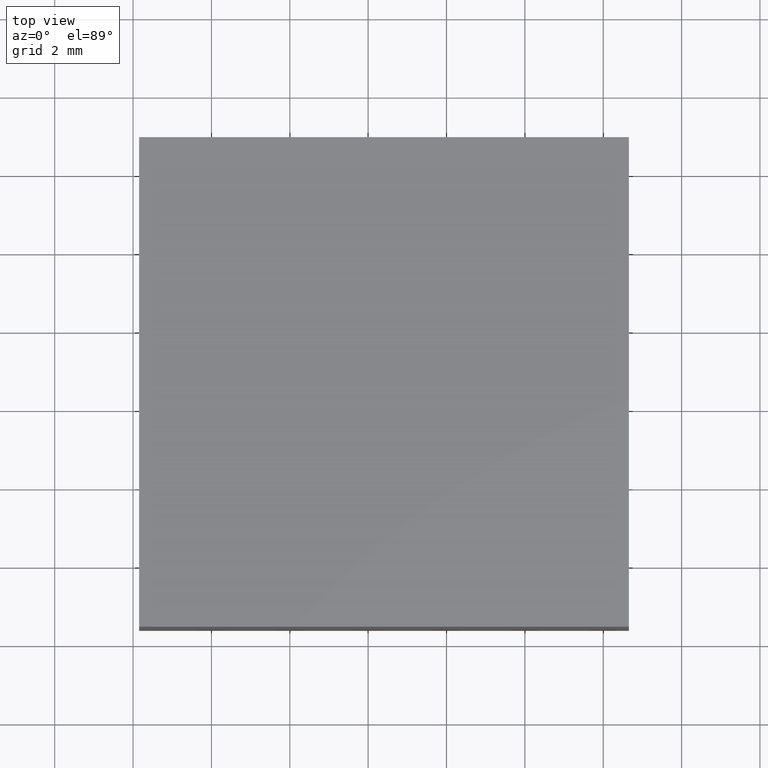
[diagram: clean part render]
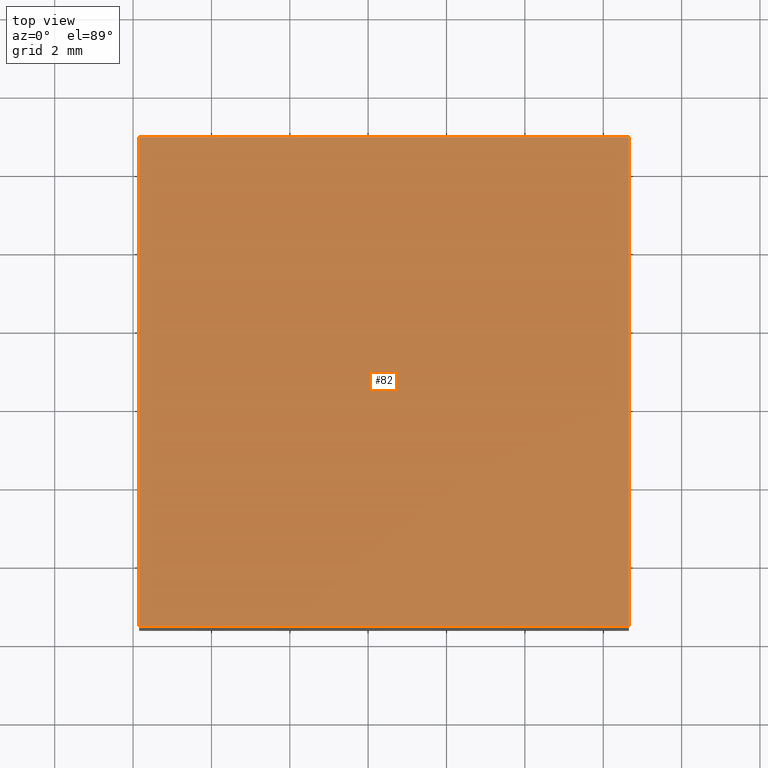
[diagram: same view with one face highlighted and labeled with its STEP entity id]
A machine part, top view. The second image highlights one B-rep face of the part: STEP entity #82.
In plain terms, the highlighted planar face has unit normal (0, 0, -1).
Its self-contained STEP definition (entity closure, byte-faithful):
#7 = VECTOR ( 'NONE', #153, 1000.000000000000000 ) ;
#11 = CARTESIAN_POINT ( 'NONE',  ( 104.1543858644214700, 32.39658967450770900, 6.000000000000000000 ) ) ;
#21 = VERTEX_POINT ( 'NONE', #57 ) ;
#23 = CARTESIAN_POINT ( 'NONE',  ( 0.0000000000000000000, 0.0000000000000000000, 6.000000000000000000 ) ) ;
#26 = FACE_OUTER_BOUND ( 'NONE', #99, .T. ) ;
#30 = LINE ( 'NONE', #105, #58 ) ;
#37 = EDGE_CURVE ( 'NONE', #148, #21, #81, .T. ) ;
#49 = ORIENTED_EDGE ( 'NONE', *, *, #83, .T. ) ;
#56 = AXIS2_PLACEMENT_3D ( 'NONE', #23, #103, #107 ) ;
#57 = CARTESIAN_POINT ( 'NONE',  ( 116.6543858644214900, 44.89658967450770900, 6.000000000000000000 ) ) ;
#58 = VECTOR ( 'NONE', #119, 1000.000000000000000 ) ;
#59 = PLANE ( 'NONE',  #56 ) ;
#60 = ORIENTED_EDGE ( 'NONE', *, *, #37, .T. ) ;
#64 = VERTEX_POINT ( 'NONE', #177 ) ;
#71 = CARTESIAN_POINT ( 'NONE',  ( 104.1543858644214700, 44.89658967450770900, 6.000000000000000000 ) ) ;
#78 = VECTOR ( 'NONE', #165, 1000.000000000000000 ) ;
#81 = LINE ( 'NONE', #179, #158 ) ;
#82 = ADVANCED_FACE ( 'NONE', ( #26 ), #59, .F. ) ;
#83 = EDGE_CURVE ( 'NONE', #157, #148, #30, .T. ) ;
#84 = LINE ( 'NONE', #71, #78 ) ;
#92 = CARTESIAN_POINT ( 'NONE',  ( 116.6543858644214900, 32.39658967450770900, 6.000000000000000000 ) ) ;
#99 = EDGE_LOOP ( 'NONE', ( #162, #49, #60, #128 ) ) ;
#103 = DIRECTION ( 'NONE',  ( 0.0000000000000000000, 0.0000000000000000000, -1.000000000000000000 ) ) ;
#105 = CARTESIAN_POINT ( 'NONE',  ( 116.6543858644214900, 32.39658967450770900, 6.000000000000000000 ) ) ;
#107 = DIRECTION ( 'NONE',  ( -1.000000000000000000, 0.0000000000000000000, -0.0000000000000000000 ) ) ;
#110 = EDGE_CURVE ( 'NONE', #21, #64, #84, .T. ) ;
#119 = DIRECTION ( 'NONE',  ( 1.000000000000000000, -0.0000000000000000000, -0.0000000000000000000 ) ) ;
#128 = ORIENTED_EDGE ( 'NONE', *, *, #110, .T. ) ;
#136 = EDGE_CURVE ( 'NONE', #64, #157, #156, .T. ) ;
#138 = CARTESIAN_POINT ( 'NONE',  ( 104.1543858644214700, 32.39658967450770900, 6.000000000000000000 ) ) ;
#147 = DIRECTION ( 'NONE',  ( -0.0000000000000000000, 1.000000000000000000, -0.0000000000000000000 ) ) ;
#148 = VERTEX_POINT ( 'NONE', #92 ) ;
#153 = DIRECTION ( 'NONE',  ( -0.0000000000000000000, -1.000000000000000000, -0.0000000000000000000 ) ) ;
#156 = LINE ( 'NONE', #138, #7 ) ;
#157 = VERTEX_POINT ( 'NONE', #11 ) ;
#158 = VECTOR ( 'NONE', #147, 1000.000000000000000 ) ;
#162 = ORIENTED_EDGE ( 'NONE', *, *, #136, .T. ) ;
#165 = DIRECTION ( 'NONE',  ( -1.000000000000000000, -0.0000000000000000000, -0.0000000000000000000 ) ) ;
#177 = CARTESIAN_POINT ( 'NONE',  ( 104.1543858644214700, 44.89658967450770900, 6.000000000000000000 ) ) ;
#179 = CARTESIAN_POINT ( 'NONE',  ( 116.6543858644214900, 44.89658967450770900, 6.000000000000000000 ) ) ;